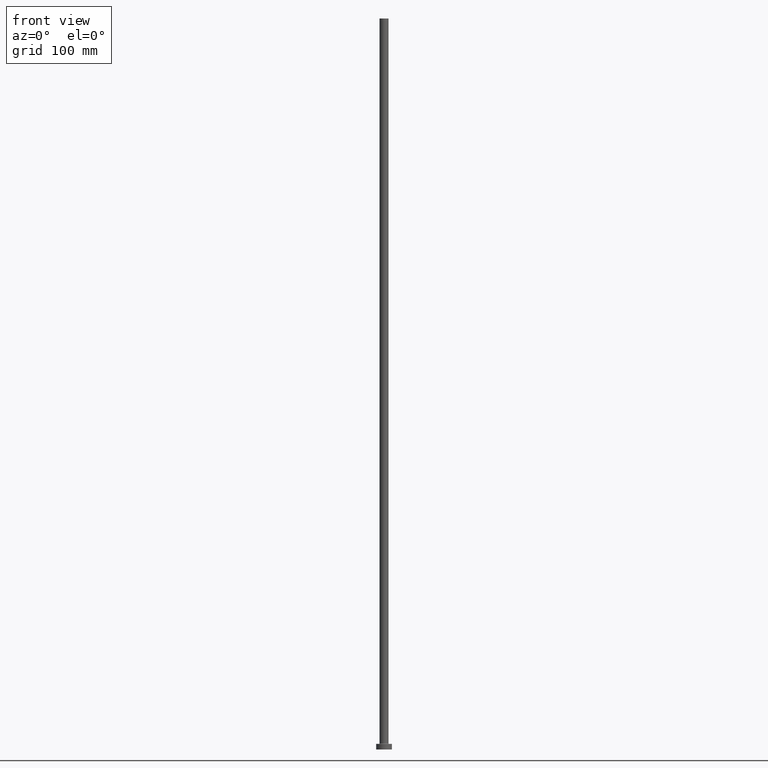
[diagram: clean part render]
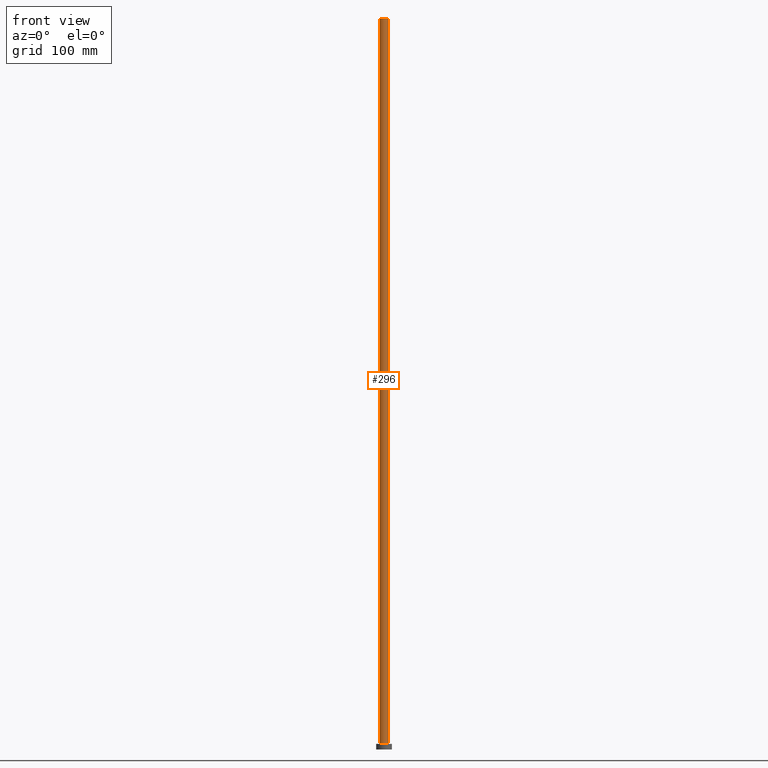
[diagram: same view with one face highlighted and labeled with its STEP entity id]
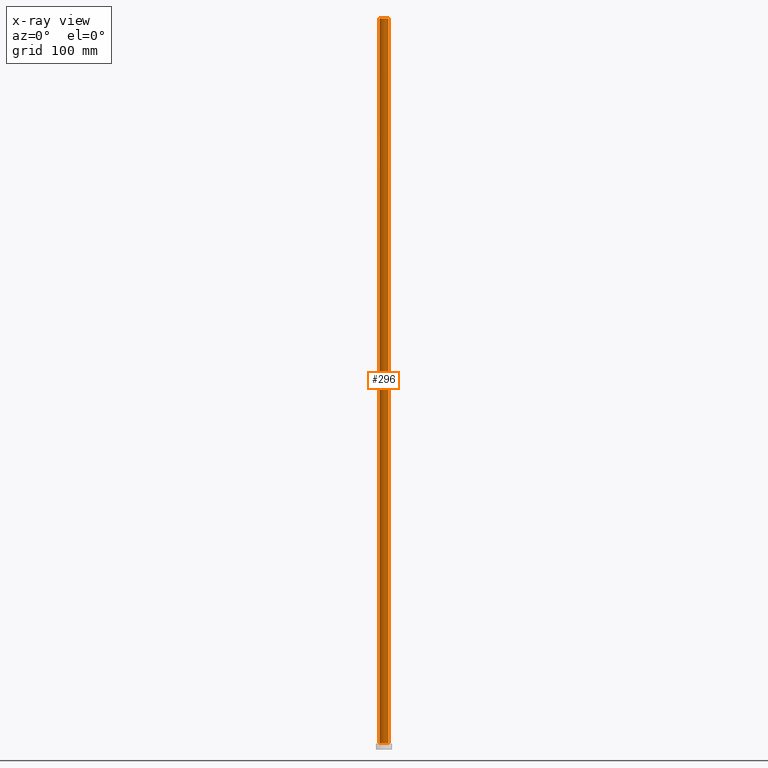
[diagram: x-ray of the same camera — body ghosted, the highlighted face saturated]
A machine part, front view. The second image highlights one B-rep face of the part: STEP entity #296.
The next image is the same camera in x-ray: the body ghosted, the highlighted face saturated — about 0% of this face is hidden behind the body in this view.
In plain terms, the highlighted cylindrical surface (edge-blend (fillet) strip) has radius 4 mm, axis along (-0, -0, -1).
Its self-contained STEP definition (entity closure, byte-faithful):
#3 = EDGE_CURVE ( 'NONE', #428, #133, #59, .T. ) ;
#4 = AXIS2_PLACEMENT_3D ( 'NONE', #30, #165, #167 ) ;
#27 = ORIENTED_EDGE ( 'NONE', *, *, #3, .T. ) ;
#30 = CARTESIAN_POINT ( 'NONE',  ( 0.000000000000000000, 0.000000000000000000, 5.499999999999949374 ) ) ;
#59 = LINE ( 'NONE', #263, #432 ) ;
#75 = EDGE_CURVE ( 'NONE', #133, #355, #404, .T. ) ;
#122 = LINE ( 'NONE', #343, #448 ) ;
#128 = EDGE_CURVE ( 'NONE', #237, #355, #122, .T. ) ;
#133 = VERTEX_POINT ( 'NONE', #369 ) ;
#144 = EDGE_LOOP ( 'NONE', ( #416, #373, #27, #309 ) ) ;
#145 = DIRECTION ( 'NONE',  ( -1.000000000000000000, 0.000000000000000000, 0.000000000000000000 ) ) ;
#165 = DIRECTION ( 'NONE',  ( 0.000000000000000000, 0.000000000000000000, 1.000000000000000000 ) ) ;
#167 = DIRECTION ( 'NONE',  ( 1.000000000000000000, 0.000000000000000000, 0.000000000000000000 ) ) ;
#187 = DIRECTION ( 'NONE',  ( -0.000000000000000000, -0.000000000000000000, -1.000000000000000000 ) ) ;
#193 = CARTESIAN_POINT ( 'NONE',  ( 0.000000000000000000, 0.000000000000000000, 650.0000000000000000 ) ) ;
#203 = CARTESIAN_POINT ( 'NONE',  ( 4.000000000000000000, 4.898587196589411843E-16, 650.0000000000000000 ) ) ;
#211 = AXIS2_PLACEMENT_3D ( 'NONE', #318, #238, #387 ) ;
#233 = DIRECTION ( 'NONE',  ( -0.000000000000000000, -0.000000000000000000, -1.000000000000000000 ) ) ;
#236 = EDGE_CURVE ( 'NONE', #428, #237, #456, .T. ) ;
#237 = VERTEX_POINT ( 'NONE', #203 ) ;
#238 = DIRECTION ( 'NONE',  ( 0.000000000000000000, 0.000000000000000000, 1.000000000000000000 ) ) ;
#241 = CARTESIAN_POINT ( 'NONE',  ( 4.000000000000000000, 4.898587196589411843E-16, 5.499999999999949374 ) ) ;
#247 = FACE_OUTER_BOUND ( 'NONE', #144, .T. ) ;
#263 = CARTESIAN_POINT ( 'NONE',  ( -4.000000000000000000, 0.000000000000000000, 650.0000000000000000 ) ) ;
#296 = ADVANCED_FACE ( 'NONE', ( #247 ), #414, .T. ) ;
#309 = ORIENTED_EDGE ( 'NONE', *, *, #75, .T. ) ;
#318 = CARTESIAN_POINT ( 'NONE',  ( 0.000000000000000000, 0.000000000000000000, 650.0000000000000000 ) ) ;
#333 = CARTESIAN_POINT ( 'NONE',  ( -4.000000000000000000, 0.000000000000000000, 650.0000000000000000 ) ) ;
#343 = CARTESIAN_POINT ( 'NONE',  ( 4.000000000000000000, 4.898587196589411843E-16, 650.0000000000000000 ) ) ;
#355 = VERTEX_POINT ( 'NONE', #241 ) ;
#356 = DIRECTION ( 'NONE',  ( -0.000000000000000000, -0.000000000000000000, -1.000000000000000000 ) ) ;
#365 = AXIS2_PLACEMENT_3D ( 'NONE', #193, #356, #145 ) ;
#369 = CARTESIAN_POINT ( 'NONE',  ( -4.000000000000000000, 0.000000000000000000, 5.499999999999949374 ) ) ;
#373 = ORIENTED_EDGE ( 'NONE', *, *, #236, .F. ) ;
#387 = DIRECTION ( 'NONE',  ( 1.000000000000000000, 0.000000000000000000, 0.000000000000000000 ) ) ;
#404 = CIRCLE ( 'NONE', #4, 4.000000000000000000 ) ;
#414 = CYLINDRICAL_SURFACE ( 'NONE', #365, 4.000000000000000000 ) ;
#416 = ORIENTED_EDGE ( 'NONE', *, *, #128, .F. ) ;
#428 = VERTEX_POINT ( 'NONE', #333 ) ;
#432 = VECTOR ( 'NONE', #233, 1000.000000000000000 ) ;
#448 = VECTOR ( 'NONE', #187, 1000.000000000000000 ) ;
#456 = CIRCLE ( 'NONE', #211, 4.000000000000000000 ) ;